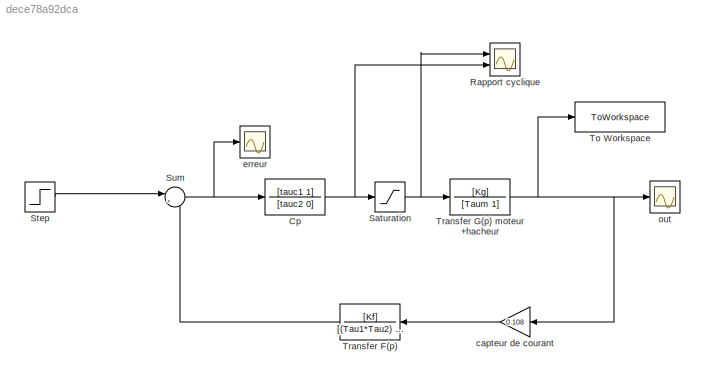
MODEL slx_dece78a92dca
KIND model
CONFIG AbsTol = auto
CONFIG EnableMultiTasking = off
CONFIG FixedStep = auto
CONFIG MaxStep = auto
CONFIG MinStep = auto
CONFIG RelTol = 1e-5
CONFIG SampleTimeConstraint = Unconstrained
CONFIG Solver = VariableStepAuto
CONFIG SolverName = VariableStepAuto
CONFIG StartTime = 0.0
CONFIG StopTime = 0.05
BLOCK [TransferFcn] Cp
  Denominator = [tauc2 0]
  Numerator = [tauc1 1]
BLOCK [Scope] Rapport cyclique
  Floating = off
  NumInputPorts = 2
  Ports = [2]
  ScopeSpecificationString = Simulink.scopes.TimeScopeBlockCfg('CurrentConfiguration', extmgr.ConfigurationSet(extmgr.Configuration('Core','General UI',true),extmgr.Configuration('Core','Source UI',true),extmgr.Configuration('Sources','WiredSimulink',true,'DataLoggingVariableName','ScopeData2'),extmgr.Configuration('Visuals','Time Domain',true,'SerializedDisplays',{struct('MinYLimReal','-0.15595','MaxYLimReal','1.40351','YLab...<+1732ch>
BLOCK [Saturate] Saturation
BLOCK [Step] Step
  After = 1.65
  SampleTime = 0
  Time = 0.01
BLOCK [Sum] Sum
  Inputs = |+-
  Ports = [2, 1]
BLOCK [ToWorkspace] To Workspace
  FixptAsFi = on
  MaxDataPoints = inf
  Ports = [1]
  SampleTime = -1
  SaveFormat = Timeseries
  VariableName = simout
BLOCK [TransferFcn] Transfer F(p)
  Denominator = [(Tau1*Tau2) (Tau1+Tau2) 1]
  NameLocation = top
  Numerator = [Kf]
BLOCK [TransferFcn] Transfer G(p) moteur +hacheur
  Denominator = [Taum 1]
  Numerator = [Kg]
BLOCK [Gain] capteur de courant
  Gain = 0.108
  NameLocation = top
BLOCK [Scope] erreur
  Floating = off
  NumInputPorts = 1
  Ports = [1]
  ScopeSpecificationString = Simulink.scopes.TimeScopeBlockCfg('CurrentConfiguration', extmgr.ConfigurationSet(extmgr.Configuration('Core','General UI',true),extmgr.Configuration('Core','Source UI',true),extmgr.Configuration('Sources','WiredSimulink',true,'DataLoggingVariableName','ScopeData1'),extmgr.Configuration('Visuals','Time Domain',true,'SerializedDisplays',{struct('MinYLimReal','-0.04688','MaxYLimReal','2.50307','YLab...<+1446ch>
BLOCK [Scope] out
  Floating = off
  NumInputPorts = 1
  Ports = [1]
  ScopeSpecificationString = Simulink.scopes.TimeScopeBlockCfg('CurrentConfiguration', extmgr.ConfigurationSet(extmgr.Configuration('Core','General UI',true),extmgr.Configuration('Core','Source UI',true),extmgr.Configuration('Sources','WiredSimulink',true),extmgr.Configuration('Visuals','Time Domain',true,'SerializedDisplays',{struct('MinYLimReal','-0.42262','MaxYLimReal','21.63481','YLabelReal','','MinYLimMag','0.00000','Max...<+1697ch>
NET Cp:1 -> Rapport cyclique:2, Saturation:1
NET Saturation:1 -> Rapport cyclique:1, Transfer G(p) moteur +hacheur:1
LINE Step:1 -> Sum:1
NET Sum:1 -> Cp:1, erreur:1
LINE Transfer F(p):1 -> Sum:2
NET Transfer G(p) moteur +hacheur:1 -> To Workspace:1, capteur de courant:1, out:1
LINE capteur de courant:1 -> Transfer F(p):1
note: NET lines group one-source signal fan-out (src -> all destinations, sorted); 1:1 wires keep LINE
